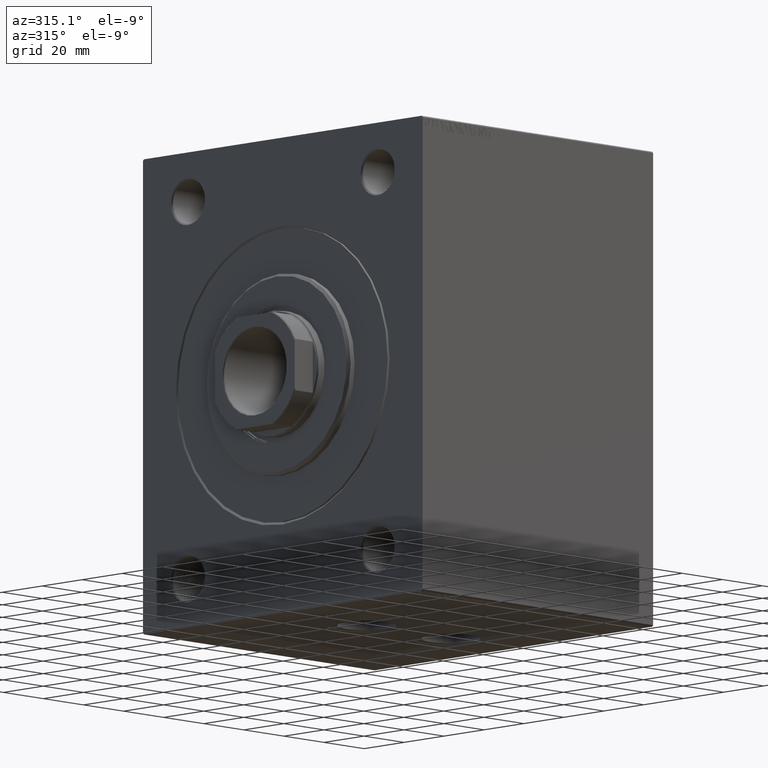
[diagram: clean part render]
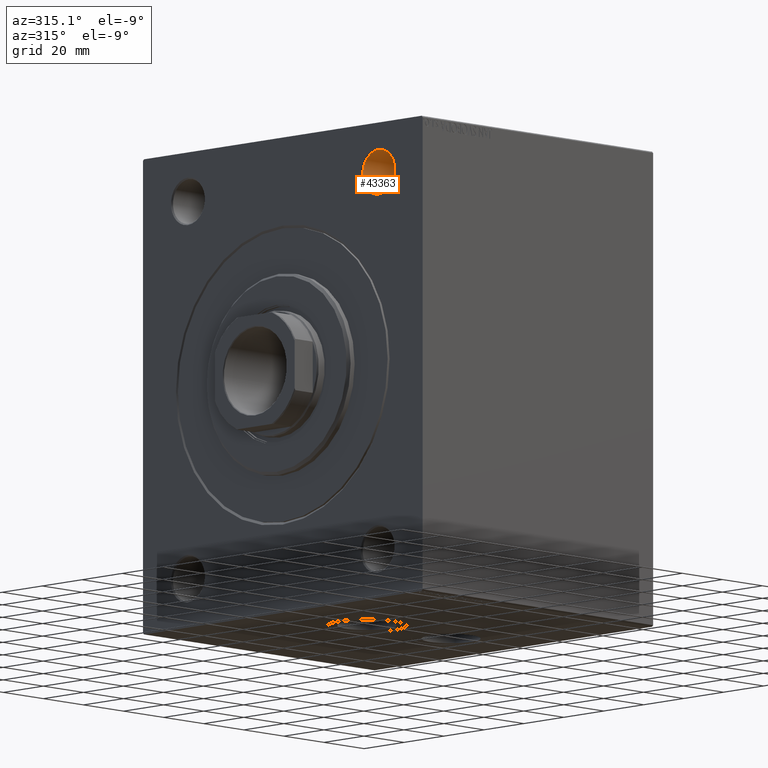
[diagram: same view with one face highlighted and labeled with its STEP entity id]
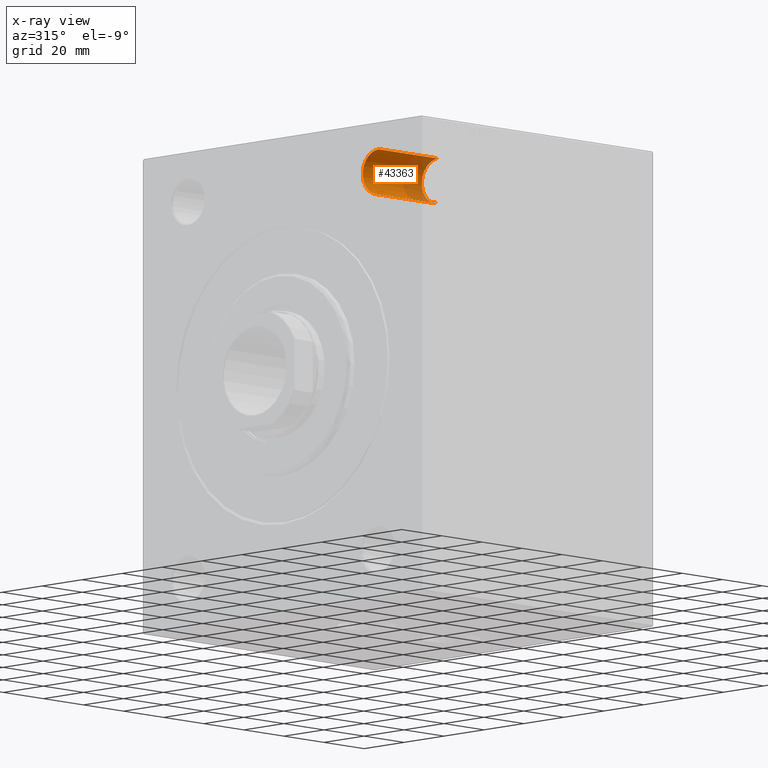
[diagram: x-ray of the same camera — body ghosted, the highlighted face saturated]
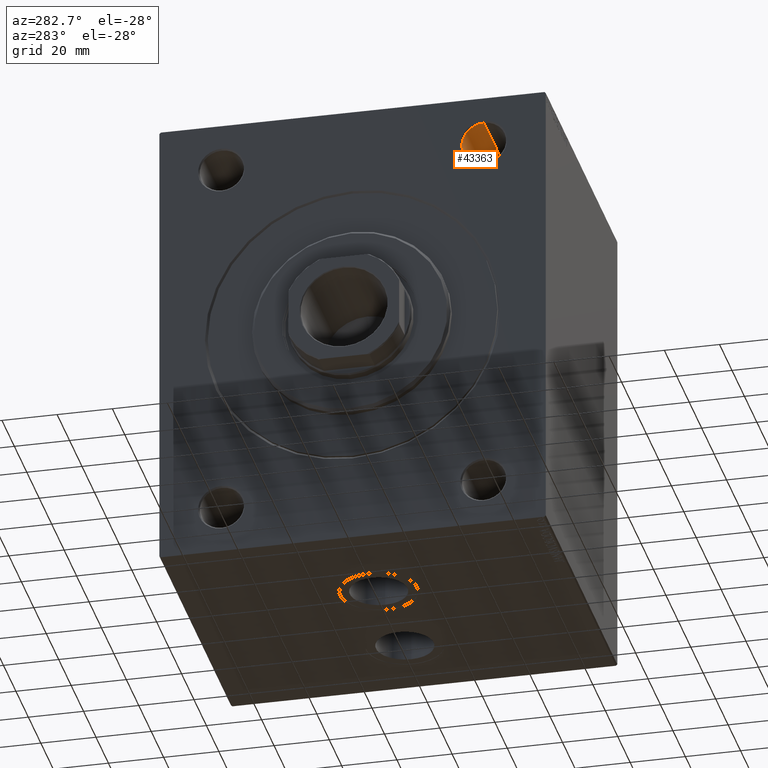
[diagram: same view with one face highlighted and labeled with its STEP entity id]
A machine part, auxiliary view. The second image highlights one B-rep face of the part: STEP entity #43363.
The next image is the same camera in x-ray: the body ghosted, the highlighted face saturated — about 32% of this face is hidden behind the body in this view.
A second angle (auxiliary view) of the same face is appended — the face is thin or edge-on in the first view.
In plain terms, the highlighted cylindrical surface (edge-blend (fillet) strip) has radius 8 mm, axis along (-1, -0, -0).
Its self-contained STEP definition (entity closure, byte-faithful):
#372 = CIRCLE ( 'NONE', #26106, 7.999999999999992895 ) ;
#1750 = DIRECTION ( 'NONE',  ( 0.000000000000000000, 0.000000000000000000, 1.000000000000000000 ) ) ;
#2531 = EDGE_CURVE ( 'NONE', #36019, #13595, #11612, .T. ) ;
#3771 = CARTESIAN_POINT ( 'NONE',  ( 0.5000000000000698330, -47.50000000000000000, 75.49999999999998579 ) ) ;
#3961 = EDGE_CURVE ( 'NONE', #39284, #35668, #36090, .T. ) ;
#4169 = CARTESIAN_POINT ( 'NONE',  ( 30.00000000000000000, -47.50000000000000000, 59.50000000000000000 ) ) ;
#4803 = CARTESIAN_POINT ( 'NONE',  ( 0.000000000000000000, -47.50000000000000000, 59.50000000000000000 ) ) ;
#5779 = VECTOR ( 'NONE', #7474, 1000.000000000000000 ) ;
#5916 = DIRECTION ( 'NONE',  ( -1.000000000000000000, 0.000000000000000000, 0.000000000000000000 ) ) ;
#7474 = DIRECTION ( 'NONE',  ( -1.000000000000000000, -0.000000000000000000, -0.000000000000000000 ) ) ;
#9550 = CARTESIAN_POINT ( 'NONE',  ( 0.000000000000000000, -47.50000000000000000, 67.49999999999998579 ) ) ;
#10815 = ORIENTED_EDGE ( 'NONE', *, *, #2531, .T. ) ;
#11612 = LINE ( 'NONE', #31631, #5779 ) ;
#11760 = CARTESIAN_POINT ( 'NONE',  ( 0.5000000000000698330, -47.50000000000000000, 59.50000000000000000 ) ) ;
#12155 = AXIS2_PLACEMENT_3D ( 'NONE', #41131, #5916, #44585 ) ;
#12762 = DIRECTION ( 'NONE',  ( -1.000000000000000000, -0.000000000000000000, -0.000000000000000000 ) ) ;
#13012 = CARTESIAN_POINT ( 'NONE',  ( 30.00000000000000000, -47.50000000000000000, 67.49999999999998579 ) ) ;
#13595 = VERTEX_POINT ( 'NONE', #3771 ) ;
#15109 = CIRCLE ( 'NONE', #12155, 7.999999999999992895 ) ;
#16214 = FACE_OUTER_BOUND ( 'NONE', #25030, .T. ) ;
#16608 = ORIENTED_EDGE ( 'NONE', *, *, #38735, .F. ) ;
#19664 = ORIENTED_EDGE ( 'NONE', *, *, #32129, .T. ) ;
#20138 = CARTESIAN_POINT ( 'NONE',  ( 30.00000000000000000, -47.50000000000000000, 75.49999999999998579 ) ) ;
#20959 = AXIS2_PLACEMENT_3D ( 'NONE', #9550, #12762, #40833 ) ;
#21367 = DIRECTION ( 'NONE',  ( -1.000000000000000000, -0.000000000000000000, -0.000000000000000000 ) ) ;
#24921 = VECTOR ( 'NONE', #21367, 1000.000000000000000 ) ;
#25030 = EDGE_LOOP ( 'NONE', ( #26208, #16608, #10815, #19664 ) ) ;
#26106 = AXIS2_PLACEMENT_3D ( 'NONE', #13012, #44533, #1750 ) ;
#26208 = ORIENTED_EDGE ( 'NONE', *, *, #3961, .F. ) ;
#30239 = CYLINDRICAL_SURFACE ( 'NONE', #20959, 7.999999999999992895 ) ;
#31631 = CARTESIAN_POINT ( 'NONE',  ( 0.000000000000000000, -47.50000000000000000, 75.49999999999998579 ) ) ;
#32129 = EDGE_CURVE ( 'NONE', #13595, #35668, #15109, .T. ) ;
#35668 = VERTEX_POINT ( 'NONE', #11760 ) ;
#36019 = VERTEX_POINT ( 'NONE', #20138 ) ;
#36090 = LINE ( 'NONE', #4803, #24921 ) ;
#38735 = EDGE_CURVE ( 'NONE', #36019, #39284, #372, .T. ) ;
#39284 = VERTEX_POINT ( 'NONE', #4169 ) ;
#40833 = DIRECTION ( 'NONE',  ( 0.000000000000000000, 0.000000000000000000, 1.000000000000000000 ) ) ;
#41131 = CARTESIAN_POINT ( 'NONE',  ( 0.5000000000000698330, -47.50000000000000000, 67.49999999999998579 ) ) ;
#43363 = ADVANCED_FACE ( 'NONE', ( #16214 ), #30239, .F. ) ;
#44533 = DIRECTION ( 'NONE',  ( -1.000000000000000000, -0.000000000000000000, -0.000000000000000000 ) ) ;
#44585 = DIRECTION ( 'NONE',  ( 0.000000000000000000, 0.000000000000000000, -1.000000000000000000 ) ) ;